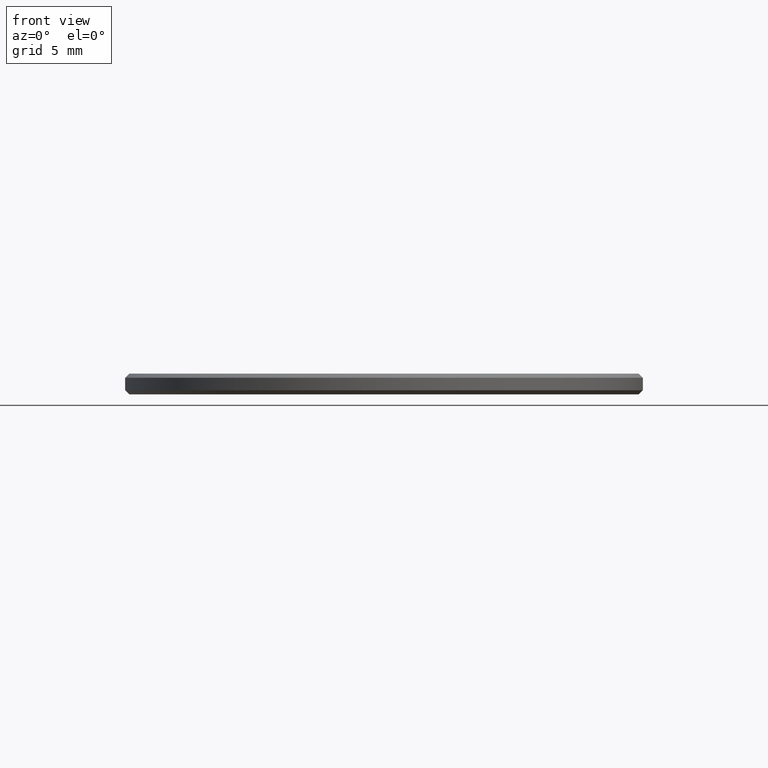
[diagram: clean part render]
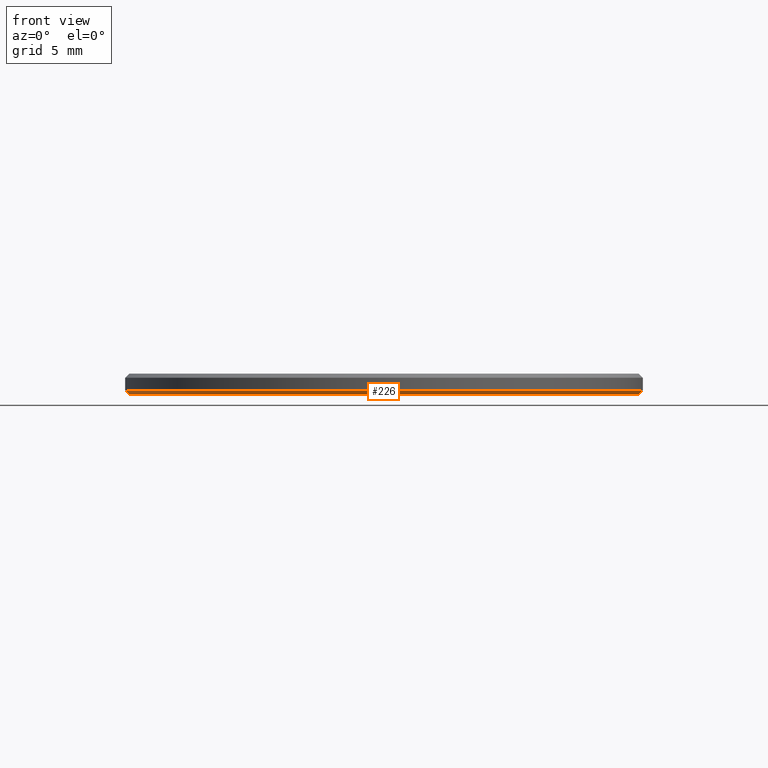
[diagram: same view with one face highlighted and labeled with its STEP entity id]
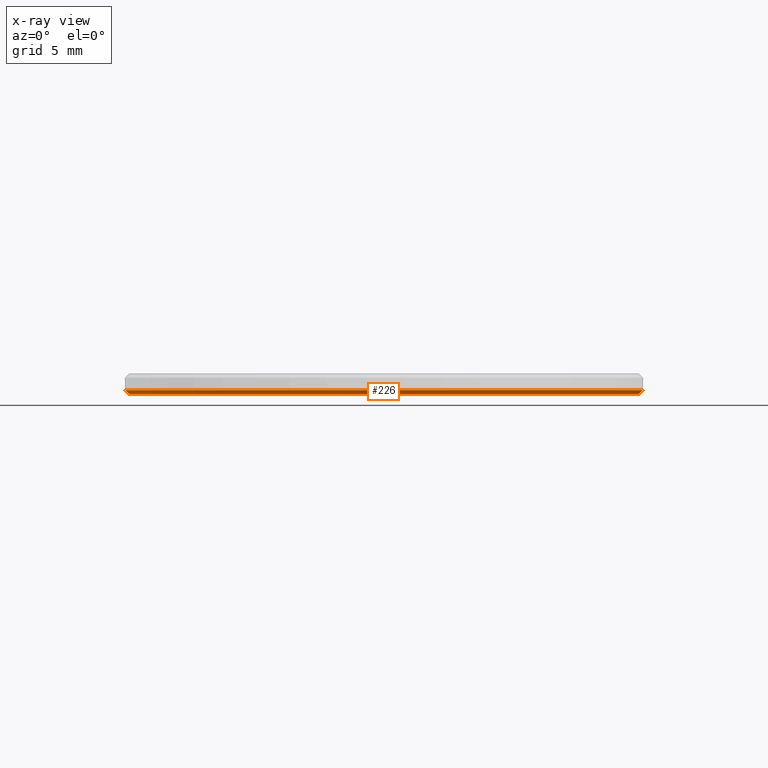
[diagram: x-ray of the same camera — body ghosted, the highlighted face saturated]
A machine part, front view. The second image highlights one B-rep face of the part: STEP entity #226.
The next image is the same camera in x-ray: the body ghosted, the highlighted face saturated — about 0% of this face is hidden behind the body in this view.
In plain terms, the highlighted conical surface has half-angle 45 deg.
Its self-contained STEP definition (entity closure, byte-faithful):
#1 = CARTESIAN_POINT ( 'NONE',  ( 0.000000000000000000, 0.000000000000000000, 0.1999999999999987899 ) ) ;
#3 = EDGE_CURVE ( 'NONE', #154, #189, #91, .T. ) ;
#5 = VECTOR ( 'NONE', #90, 1000.000000000000114 ) ;
#21 = CARTESIAN_POINT ( 'NONE',  ( 0.000000000000000000, 0.000000000000000000, 0.1999999999999987899 ) ) ;
#23 = EDGE_CURVE ( 'NONE', #227, #116, #202, .T. ) ;
#24 = FACE_OUTER_BOUND ( 'NONE', #224, .T. ) ;
#33 = CARTESIAN_POINT ( 'NONE',  ( -12.50000000000000000, 1.530808498934191521E-15, 0.1999999999999987899 ) ) ;
#52 = CARTESIAN_POINT ( 'NONE',  ( -12.50000000000000000, 0.000000000000000000, 0.1999999999999987899 ) ) ;
#77 = DIRECTION ( 'NONE',  ( -0.000000000000000000, -0.000000000000000000, 1.000000000000000000 ) ) ;
#79 = CIRCLE ( 'NONE', #215, 12.50000000000000000 ) ;
#90 = DIRECTION ( 'NONE',  ( 0.7071067811865474617, 0.000000000000000000, 0.7071067811865474617 ) ) ;
#91 = LINE ( 'NONE', #108, #5 ) ;
#93 = EDGE_CURVE ( 'NONE', #154, #227, #103, .T. ) ;
#98 = CARTESIAN_POINT ( 'NONE',  ( -12.30000000000000249, 1.518562030942718164E-15, 0.000000000000000000 ) ) ;
#100 = CARTESIAN_POINT ( 'NONE',  ( 12.50000000000000000, 1.530808498934191521E-15, 0.1999999999999987899 ) ) ;
#103 = CIRCLE ( 'NONE', #239, 12.30000000000000249 ) ;
#108 = CARTESIAN_POINT ( 'NONE',  ( 12.50000000000000000, 0.000000000000000000, 0.1999999999999987899 ) ) ;
#113 = ORIENTED_EDGE ( 'NONE', *, *, #3, .T. ) ;
#116 = VERTEX_POINT ( 'NONE', #52 ) ;
#129 = CARTESIAN_POINT ( 'NONE',  ( 12.30000000000000249, 0.000000000000000000, 0.000000000000000000 ) ) ;
#140 = DIRECTION ( 'NONE',  ( -0.000000000000000000, -0.000000000000000000, -1.000000000000000000 ) ) ;
#143 = AXIS2_PLACEMENT_3D ( 'NONE', #1, #166, #222 ) ;
#154 = VERTEX_POINT ( 'NONE', #129 ) ;
#166 = DIRECTION ( 'NONE',  ( -0.000000000000000000, -0.000000000000000000, 1.000000000000000000 ) ) ;
#167 = VECTOR ( 'NONE', #179, 1000.000000000000114 ) ;
#168 = ORIENTED_EDGE ( 'NONE', *, *, #185, .F. ) ;
#177 = CARTESIAN_POINT ( 'NONE',  ( 0.000000000000000000, 0.000000000000000000, 0.000000000000000000 ) ) ;
#179 = DIRECTION ( 'NONE',  ( -0.7071067811865474617, 8.659560562354932858E-17, 0.7071067811865474617 ) ) ;
#184 = DIRECTION ( 'NONE',  ( 1.000000000000000000, 0.000000000000000000, 0.000000000000000000 ) ) ;
#185 = EDGE_CURVE ( 'NONE', #116, #189, #79, .T. ) ;
#189 = VERTEX_POINT ( 'NONE', #100 ) ;
#191 = ORIENTED_EDGE ( 'NONE', *, *, #93, .F. ) ;
#194 = CONICAL_SURFACE ( 'NONE', #143, 12.50000000000000000, 0.7853981633974482790 ) ;
#202 = LINE ( 'NONE', #33, #167 ) ;
#212 = ORIENTED_EDGE ( 'NONE', *, *, #23, .F. ) ;
#215 = AXIS2_PLACEMENT_3D ( 'NONE', #21, #77, #184 ) ;
#218 = DIRECTION ( 'NONE',  ( 1.000000000000000000, 0.000000000000000000, 0.000000000000000000 ) ) ;
#222 = DIRECTION ( 'NONE',  ( 1.000000000000000000, 0.000000000000000000, 0.000000000000000000 ) ) ;
#224 = EDGE_LOOP ( 'NONE', ( #212, #191, #113, #168 ) ) ;
#226 = ADVANCED_FACE ( 'NONE', ( #24 ), #194, .T. ) ;
#227 = VERTEX_POINT ( 'NONE', #98 ) ;
#239 = AXIS2_PLACEMENT_3D ( 'NONE', #177, #140, #218 ) ;